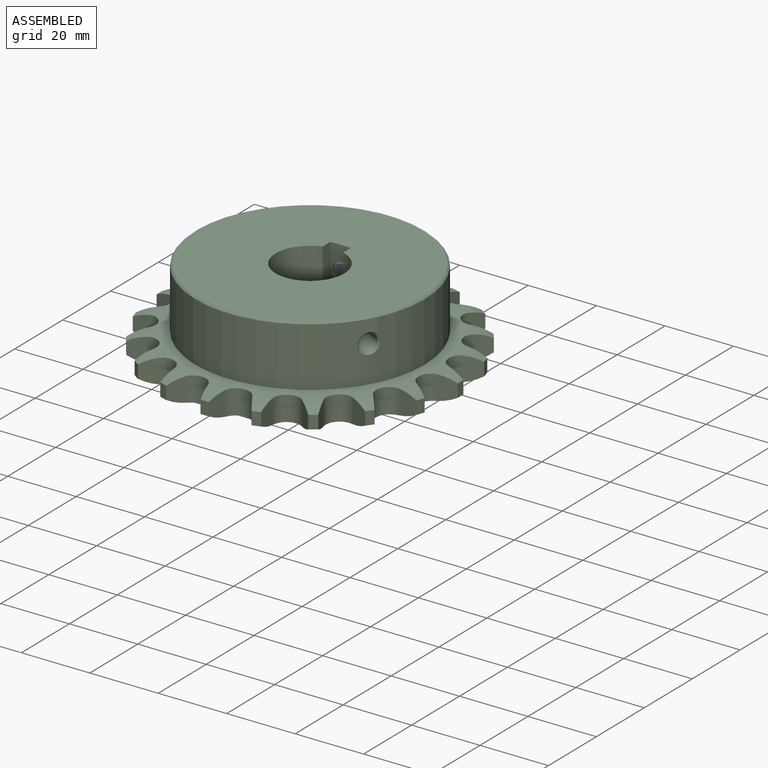
[diagram: assembled view]
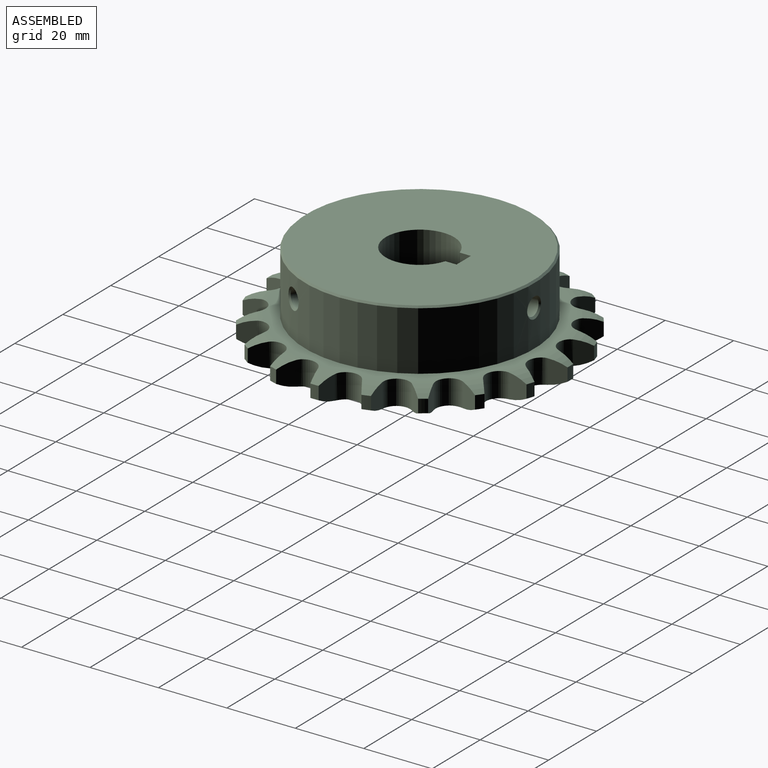
[diagram: assembled view, second angle]
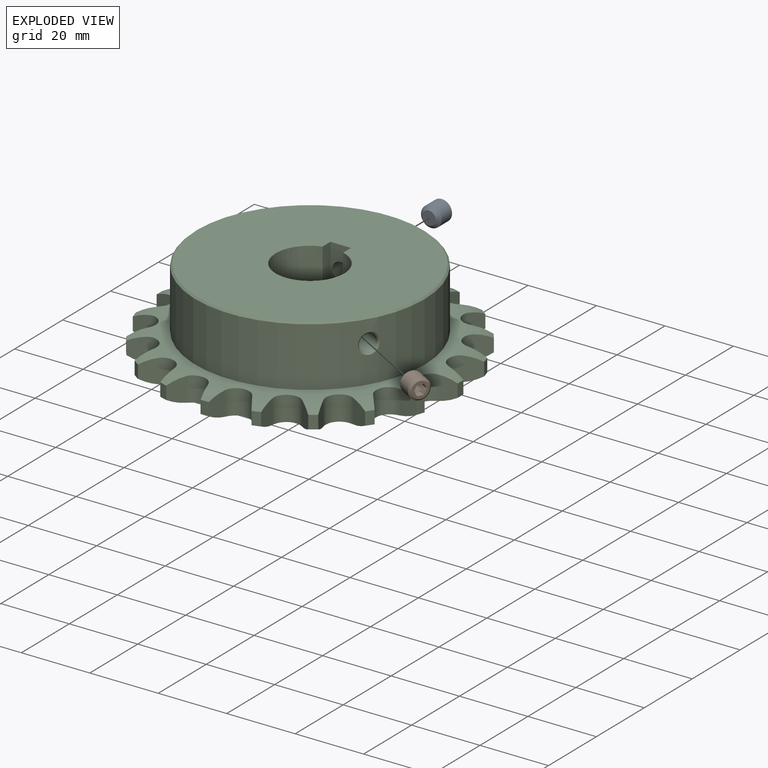
[diagram: exploded view]
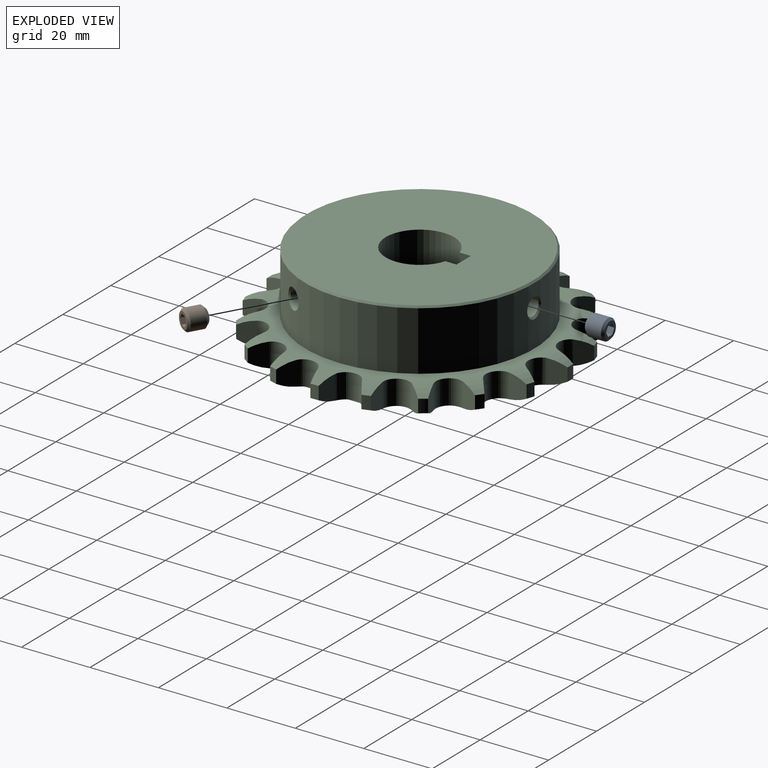
[diagram: exploded view, second angle]
ASSEMBLY  parts=3 mates=2
PART A: 18 faces, bbox 6x6x6 mm
  f0: plane 1.5x0.43mm, normal (-1,0,0), area 0.1mm2, adj f5,f6,f17
  f1: plane 1.3x0.75mm, normal (-1,0,0), area 0.1mm2, adj f5,f16,f17
  f2: plane 1.3x0.75mm, normal (-1,0,0), area 0.1mm2, adj f5,f6,f13
  f3: plane 1.3x0.75mm, normal (-1,0,0), area 0.1mm2, adj f5,f13,f14
  f4: plane 1.5x0.43mm, normal (-1,0,0), area 0.1mm2, adj f5,f14,f15
  f5: cone r=1.5mm half-angle=60deg, axis (-1,0,0), area 8.2mm2, adj f0,f1,f2,f3,f4,f7
  f6: plane 2x1.5mm, normal (0,0.5,0.87), area 3.5mm2, adj f0,f2,f8,f13,f17
  f7: plane 1.3x0.75mm, normal (-1,0,0), area 0.1mm2, adj f5,f15,f16
  f8: plane 4.77x4.77mm, normal (-1,0,0), area 10.1mm2, adj f6,f9,f13,f14,f15,f16,f17
  f9: cone r=2.39mm half-angle=45deg, axis (1,0,0), area 14.7mm2, adj f8,f10
  f10: cylinder r=3mm len=6mm, axis (-1,0,0), area 82.7mm2, adj f9,f11
  f11: cone r=3mm half-angle=45deg, axis (-1,0,0), area 22.2mm2, adj f10,f12
  f12: plane 4x4mm, normal (1,0,0), area 12.6mm2, adj f11
  f13: plane 2x1.73mm, normal (0,1,0), area 3.5mm2, adj f2,f3,f6,f8,f14
  f14: plane 2x1.5mm, normal (0,0.5,-0.87), area 3.5mm2, adj f3,f4,f8,f13,f15
  f15: plane 2x1.5mm, normal (0,-0.5,-0.87), area 3.5mm2, adj f4,f7,f8,f14,f16
  f16: plane 2x1.73mm, normal (0,-1,0), area 3.5mm2, adj f1,f7,f8,f15,f17
  f17: plane 2x1.5mm, normal (0,-0.5,0.87), area 3.5mm2, adj f0,f1,f6,f8,f16
PART B: same geometry as A
PART C: 133 faces, bbox 93.8x93.8x25.1 mm
  f0: cylinder r=3.96mm len=7.2mm, axis (0,0,1), area 65.3mm2, adj f1,f22,f24,f28,f30,f39,f40,f119
  f1: plane 7.17x5.07mm, normal (-0.26,-0.97,0), area 29.5mm2, adj f0,f28,f38,f39
  f2: torus R=37.65mm, axis (0,0,-1), area 28.4mm2, adj f7,f8,f14,f22,f26,f132
  f3: plane 7.17x4.41mm, normal (-0.55,-0.84,0), area 29.5mm2, adj f27,f36,f98,f126
  f4: plane 7.17x5.07mm, normal (-0.26,0.97,0), area 29.5mm2, adj f28,f38,f39,f126
  f5: plane 7.17x5.23mm, normal (0.05,-1,0), area 29.5mm2, adj f6,f30,f40,f123
  f6: cylinder r=3.96mm len=7.2mm, axis (0,0,1), area 65.3mm2, adj f5,f22,f24,f30,f31,f40,f118,f121
  f7: cylinder r=3.96mm len=7.2mm, axis (0,0,1), area 65.3mm2, adj f2,f8,f22,f24,f25,f45,f95,f131
  f8: plane 7.17x5.07mm, normal (-0.97,0.26,0), area 29.5mm2, adj f2,f7,f25,f26
  f9: plane 7.17x5.23mm, normal (-1,-0.05,0), area 29.5mm2, adj f10,f45,f95,f112
  f10: cylinder r=3.96mm len=7.2mm, axis (0,0,1), area 65.3mm2, adj f9,f22,f24,f44,f45,f95,f96,f130
  f11: cylinder r=3.96mm len=7.2mm, axis (0,0,1), area 65.3mm2, adj f12,f15,f22,f24,f46,f47,f93,f94
  f12: plane 7.17x4.11mm, normal (-0.63,0.78,0), area 29.5mm2, adj f11,f47,f93,f110
  f13: plane 7.17x4.41mm, normal (-0.84,0.55,0), area 29.5mm2, adj f14,f46,f94,f111
  f14: cylinder r=3.96mm len=7.2mm, axis (0,0,1), area 65.3mm2, adj f2,f13,f22,f24,f25,f46,f94,f132
  f15: plane 7.17x5.23mm, normal (1,-0.05,0), area 29.5mm2, adj f11,f46,f94,f111
  f16: cylinder r=10mm len=25mm, axis (0,0,1), area 1399.3mm2, adj f17,f18,f22,f128,f129
  f17: plane 66x66mm, normal (0,0,1), area 3089.3mm2, adj f16,f29,f127,f128,f129
  f18: cylinder r=2.46mm len=22.61mm, axis (0.87,-0.5,0), area 359.4mm2, adj f16,f19
  f19: cone r=3mm half-angle=45deg, axis (0.87,-0.5,0), area 11.7mm2, adj f18,f21
  f20: cylinder r=2.46mm len=20.16mm, axis (0,1,0), area 311.4mm2, adj f23,f127
  f21: cylinder r=33.5mm len=67mm, axis (0,0,1), area 3587.2mm2, adj f19,f23,f24,f29
  f22: plane 75.3x75.3mm, normal (0,0,-1), area 4050.3mm2, adj f0,f2,f6,f7,f10,f11,f14,f16
  f23: cone r=3mm half-angle=45deg, axis (0,1,0), area 11.4mm2, adj f20,f21
  f24: plane 75.3x75.3mm, normal (0,0,1), area 856.5mm2, adj f0,f6,f7,f10,f11,f14,f21,f25
  f25: torus R=37.65mm, axis (0,0,-1), area 28.4mm2, adj f7,f8,f14,f24,f26,f132
  f26: cylinder r=44mm len=3.8mm, axis (0,0,1), area 9.1mm2, adj f2,f8,f25,f132
  f27: torus R=37.65mm, axis (0,0,-1), area 28.4mm2, adj f3,f24,f36,f41,f125,f126
  f28: torus R=37.65mm, axis (0,0,-1), area 28.4mm2, adj f0,f1,f4,f24,f38,f126
  f29: cone r=33.5mm half-angle=45deg, axis (0,0,-1), area 147.7mm2, adj f17,f21
  f30: torus R=37.65mm, axis (0,0,-1), area 28.4mm2, adj f0,f5,f6,f24,f119,f123
  f31: torus R=37.65mm, axis (0,0,-1), area 28.4mm2, adj f6,f24,f32,f33,f118,f122
  f32: plane 7.17x4.91mm, normal (0.36,-0.93,0), area 29.5mm2, adj f31,f33,f121,f122
  f33: cylinder r=3.96mm len=7.2mm, axis (0,0,1), area 65.3mm2, adj f22,f24,f31,f32,f109,f117,f120,f121
  f34: plane 7.17x4.91mm, normal (-0.93,-0.36,0), area 29.5mm2, adj f35,f44,f96,f113
  f35: cylinder r=3.96mm len=7.2mm, axis (0,0,1), area 65.3mm2, adj f22,f24,f34,f43,f44,f96,f97,f124
  f36: cylinder r=44mm len=3.8mm, axis (0,0,1), area 9.1mm2, adj f3,f27,f98,f125
  f37: cylinder r=44mm len=3.8mm, axis (0,0,1), area 9.1mm2, adj f42,f43,f97,f124
  f38: cylinder r=44mm len=3.8mm, axis (0,0,1), area 9.1mm2, adj f1,f4,f28,f39
  f39: torus R=37.65mm, axis (0,0,-1), area 28.4mm2, adj f0,f1,f4,f22,f38,f126
  f40: torus R=37.65mm, axis (0,0,-1), area 28.4mm2, adj f0,f5,f6,f22,f119,f123
  f41: cylinder r=3.96mm len=7.2mm, axis (0,0,1), area 65.3mm2, adj f22,f24,f27,f42,f43,f97,f98,f125
  f42: plane 7.17x4.11mm, normal (-0.78,-0.63,0), area 29.5mm2, adj f37,f41,f43,f97
  f43: torus R=37.65mm, axis (0,0,-1), area 28.4mm2, adj f24,f35,f37,f41,f42,f124
  f44: torus R=37.65mm, axis (0,0,-1), area 28.4mm2, adj f10,f24,f34,f35,f113,f130
  f45: torus R=37.65mm, axis (0,0,-1), area 28.4mm2, adj f7,f9,f10,f24,f112,f131
  f46: torus R=37.65mm, axis (0,0,-1), area 28.4mm2, adj f11,f13,f14,f15,f24,f111
  f47: torus R=37.65mm, axis (0,0,-1), area 28.4mm2, adj f11,f12,f24,f82,f84,f110
  f48: torus R=37.65mm, axis (0,0,-1), area 28.4mm2, adj f24,f79,f81,f82,f83,f90
  f49: cylinder r=3.96mm len=7.2mm, axis (0,0,1), area 65.3mm2, adj f22,f24,f50,f60,f108,f109,f116,f120
  f50: plane 7.17x4.11mm, normal (0.63,-0.78,0), area 29.5mm2, adj f49,f54,f109,f120
  f51: plane 7.17x4.41mm, normal (0.84,-0.55,0), area 29.5mm2, adj f52,f53,f60,f108
  f52: cylinder r=3.96mm len=7.2mm, axis (0,0,1), area 65.3mm2, adj f22,f24,f51,f59,f60,f107,f108,f115
  f53: cylinder r=44mm len=3.8mm, axis (0,0,1), area 9.1mm2, adj f51,f60,f108,f116
  f54: cylinder r=44mm len=3.8mm, axis (0,0,1), area 9.1mm2, adj f50,f109,f117,f120
  f55: cylinder r=44mm len=3.8mm, axis (0,0,1), area 9.1mm2, adj f57,f59,f107,f115
  f56: cylinder r=44mm len=3.8mm, axis (0,0,1), area 9.1mm2, adj f61,f65,f106,f114
  f57: plane 7.17x5.07mm, normal (0.97,-0.26,0), area 29.5mm2, adj f55,f58,f59,f107
  f58: cylinder r=3.96mm len=7.2mm, axis (0,0,1), area 65.3mm2, adj f22,f24,f57,f59,f61,f106,f107,f114
  f59: torus R=37.65mm, axis (0,0,-1), area 28.4mm2, adj f22,f52,f55,f57,f58,f115
  f60: torus R=37.65mm, axis (0,0,-1), area 28.4mm2, adj f22,f49,f51,f52,f53,f116
  f61: torus R=37.65mm, axis (0,0,-1), area 28.4mm2, adj f22,f56,f58,f64,f65,f114
  f62: torus R=37.65mm, axis (0,0,-1), area 28.4mm2, adj f22,f64,f66,f67,f73,f85
  f63: torus R=37.65mm, axis (0,0,-1), area 28.4mm2, adj f22,f67,f68,f69,f74,f86
  f64: cylinder r=3.96mm len=7.2mm, axis (0,0,1), area 65.3mm2, adj f22,f24,f61,f62,f65,f73,f105,f106
  f65: plane 7.17x5.23mm, normal (1,0.05,0), area 29.5mm2, adj f56,f61,f64,f106
  f66: plane 7.17x4.91mm, normal (0.93,0.36,0), area 29.5mm2, adj f62,f67,f85,f105
  f67: cylinder r=3.96mm len=7.2mm, axis (0,0,1), area 65.3mm2, adj f22,f24,f62,f63,f66,f68,f104,f105
  f68: plane 7.17x4.91mm, normal (-0.36,-0.93,0), area 29.5mm2, adj f63,f67,f86,f104
  f69: plane 7.17x4.11mm, normal (0.78,0.63,0), area 29.5mm2, adj f63,f74,f86,f104
  f70: plane 7.17x5.23mm, normal (-0.05,-1,0), area 29.5mm2, adj f74,f87,f100,f103
  f71: plane 7.17x4.41mm, normal (0.55,0.84,0), area 29.5mm2, adj f72,f87,f100,f103
  f72: cylinder r=3.96mm len=7.2mm, axis (0,0,1), area 65.3mm2, adj f22,f24,f71,f75,f99,f100,f102,f103
  f73: plane 7.17x4.11mm, normal (-0.63,-0.78,0), area 29.5mm2, adj f62,f64,f85,f105
  f74: cylinder r=3.96mm len=7.2mm, axis (0,0,1), area 65.3mm2, adj f22,f24,f63,f69,f70,f100,f103,f104
  f75: plane 7.17x5.07mm, normal (0.26,-0.97,0), area 29.5mm2, adj f72,f88,f99,f102
  f76: cylinder r=3.96mm len=7.2mm, axis (0,0,1), area 65.3mm2, adj f22,f24,f77,f78,f92,f99,f101,f102
  f77: plane 7.17x5.07mm, normal (0.26,0.97,0), area 29.5mm2, adj f76,f88,f99,f102
  f78: plane 7.17x4.41mm, normal (0.55,-0.84,0), area 29.5mm2, adj f76,f89,f92,f101
  f79: cylinder r=3.96mm len=7.2mm, axis (0,0,1), area 65.3mm2, adj f22,f24,f48,f80,f81,f91,f92,f101
  f80: plane 7.17x5.23mm, normal (-0.05,1,0), area 29.5mm2, adj f79,f89,f92,f101
  f81: plane 7.17x4.11mm, normal (0.78,-0.63,0), area 29.5mm2, adj f48,f79,f90,f91
  f82: cylinder r=3.96mm len=7.2mm, axis (0,0,1), area 65.3mm2, adj f22,f24,f47,f48,f83,f84,f91,f93
  f83: plane 7.17x4.91mm, normal (-0.36,0.93,0), area 29.5mm2, adj f48,f82,f90,f91
  f84: plane 7.17x4.91mm, normal (0.93,-0.36,0), area 29.5mm2, adj f47,f82,f93,f110
  f85: cylinder r=44mm len=3.8mm, axis (0,0,1), area 9.1mm2, adj f62,f66,f73,f105
  f86: cylinder r=44mm len=3.8mm, axis (0,0,1), area 9.1mm2, adj f63,f68,f69,f104
  f87: cylinder r=44mm len=3.8mm, axis (0,0,1), area 9.1mm2, adj f70,f71,f100,f103
  f88: cylinder r=44mm len=3.8mm, axis (0,0,1), area 9.1mm2, adj f75,f77,f99,f102
  f89: cylinder r=44mm len=3.8mm, axis (0,0,1), area 9.1mm2, adj f78,f80,f92,f101
  f90: cylinder r=44mm len=3.8mm, axis (0,0,1), area 9.1mm2, adj f48,f81,f83,f91
  f91: torus R=37.65mm, axis (0,0,-1), area 28.4mm2, adj f22,f79,f81,f82,f83,f90
  f92: torus R=37.65mm, axis (0,0,-1), area 28.4mm2, adj f22,f76,f78,f79,f80,f89
  f93: torus R=37.65mm, axis (0,0,-1), area 28.4mm2, adj f11,f12,f22,f82,f84,f110
  f94: torus R=37.65mm, axis (0,0,-1), area 28.4mm2, adj f11,f13,f14,f15,f22,f111
  f95: torus R=37.65mm, axis (0,0,-1), area 28.4mm2, adj f7,f9,f10,f22,f112,f131
  f96: torus R=37.65mm, axis (0,0,-1), area 28.4mm2, adj f10,f22,f34,f35,f113,f130
  f97: torus R=37.65mm, axis (0,0,-1), area 28.4mm2, adj f22,f35,f37,f41,f42,f124
  f98: torus R=37.65mm, axis (0,0,-1), area 28.4mm2, adj f3,f22,f36,f41,f125,f126
  f99: torus R=37.65mm, axis (0,0,-1), area 28.4mm2, adj f22,f72,f75,f76,f77,f88
  f100: torus R=37.65mm, axis (0,0,-1), area 28.4mm2, adj f22,f70,f71,f72,f74,f87
  f101: torus R=37.65mm, axis (0,0,-1), area 28.4mm2, adj f24,f76,f78,f79,f80,f89
  f102: torus R=37.65mm, axis (0,0,-1), area 28.4mm2, adj f24,f72,f75,f76,f77,f88
  f103: torus R=37.65mm, axis (0,0,-1), area 28.4mm2, adj f24,f70,f71,f72,f74,f87
  f104: torus R=37.65mm, axis (0,0,-1), area 28.4mm2, adj f24,f67,f68,f69,f74,f86
  f105: torus R=37.65mm, axis (0,0,-1), area 28.4mm2, adj f24,f64,f66,f67,f73,f85
  f106: torus R=37.65mm, axis (0,0,-1), area 28.4mm2, adj f24,f56,f58,f64,f65,f114
  f107: torus R=37.65mm, axis (0,0,-1), area 28.4mm2, adj f24,f52,f55,f57,f58,f115
  f108: torus R=37.65mm, axis (0,0,-1), area 28.4mm2, adj f24,f49,f51,f52,f53,f116
  f109: torus R=37.65mm, axis (0,0,-1), area 28.4mm2, adj f24,f33,f49,f50,f54,f117
  f110: cylinder r=44mm len=3.8mm, axis (0,0,1), area 9.1mm2, adj f12,f47,f84,f93
  f111: cylinder r=44mm len=3.8mm, axis (0,0,1), area 9.1mm2, adj f13,f15,f46,f94
  f112: cylinder r=44mm len=3.8mm, axis (0,0,1), area 9.1mm2, adj f9,f45,f95,f131
  f113: cylinder r=44mm len=3.8mm, axis (0,0,1), area 9.1mm2, adj f34,f44,f96,f130
  f114: plane 7.17x4.41mm, normal (-0.84,-0.55,0), area 29.5mm2, adj f56,f58,f61,f106
  f115: plane 7.17x5.07mm, normal (-0.97,-0.26,0), area 29.5mm2, adj f52,f55,f59,f107
  f116: plane 7.17x5.23mm, normal (-1,0.05,0), area 29.5mm2, adj f49,f53,f60,f108
  f117: plane 7.17x4.91mm, normal (-0.93,0.36,0), area 29.5mm2, adj f33,f54,f109,f120
  f118: plane 7.17x4.11mm, normal (-0.78,0.63,0), area 29.5mm2, adj f6,f31,f121,f122
  f119: plane 7.17x4.41mm, normal (-0.55,0.84,0), area 29.5mm2, adj f0,f30,f40,f123
  f120: torus R=37.65mm, axis (0,0,-1), area 28.4mm2, adj f22,f33,f49,f50,f54,f117
  f121: torus R=37.65mm, axis (0,0,-1), area 28.4mm2, adj f6,f22,f32,f33,f118,f122
  f122: cylinder r=44mm len=3.8mm, axis (0,0,1), area 9.1mm2, adj f31,f32,f118,f121
  f123: cylinder r=44mm len=3.8mm, axis (0,0,1), area 9.1mm2, adj f5,f30,f40,f119
  f124: plane 7.17x4.91mm, normal (0.36,0.93,0), area 29.5mm2, adj f35,f37,f43,f97
  f125: plane 7.17x5.23mm, normal (0.05,1,0), area 29.5mm2, adj f27,f36,f41,f98
  f126: cylinder r=3.96mm len=7.2mm, axis (0,0,1), area 65.3mm2, adj f3,f4,f22,f24,f27,f28,f39,f98
  f127: plane 25x6mm, normal (0,-1,0), area 131mm2, adj f17,f20,f22,f128,f129
  f128: plane 25x3.26mm, normal (1,0,0), area 81.5mm2, adj f16,f17,f22,f127
  f129: plane 25x3.26mm, normal (-1,0,0), area 81.5mm2, adj f16,f17,f22,f127
  f130: plane 7.17x4.11mm, normal (0.63,0.78,0), area 29.5mm2, adj f10,f44,f96,f113
  f131: plane 7.17x4.41mm, normal (0.84,0.55,0), area 29.5mm2, adj f7,f45,f95,f112
  f132: plane 7.17x5.07mm, normal (0.97,0.26,0), area 29.5mm2, adj f2,f14,f25,f26
PLACE A rot(axis=(0.58,-0.58,-0.58),120deg) t=(0.98,11.86,18.73)mm
PLACE B rot(axis=(0.19,0.69,0.69),158.9deg) t=(9.25,-5.72,18.73)mm
PLACE C t=(0.98,-0.94,0.73)mm
MATE fastened A.f5 <-> C.f20  axis (0,-1,0) through (0.98,11.86,18.73)mm
MATE fastened C.f18 <-> B.f5  axis (0.87,-0.5,0) through (9.25,-5.72,18.73)mm
